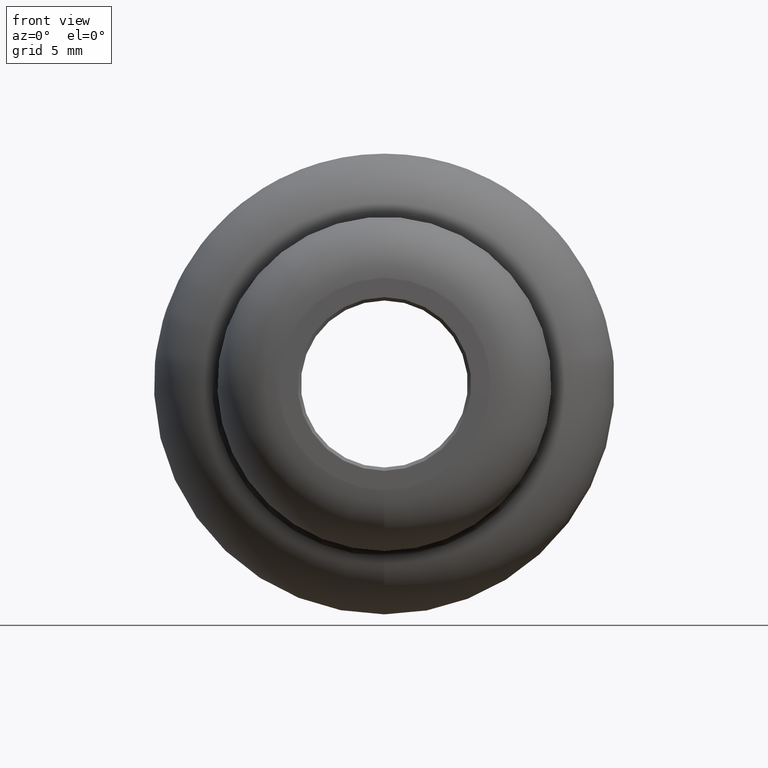
[diagram: clean part render]
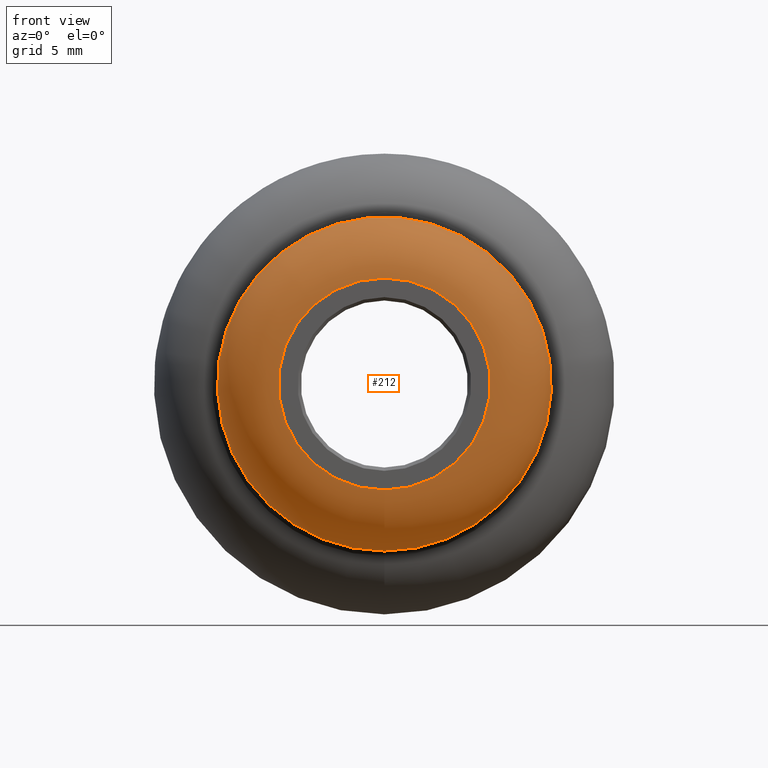
[diagram: same view with one face highlighted and labeled with its STEP entity id]
A machine part, front view. The second image highlights one B-rep face of the part: STEP entity #212.
In plain terms, the highlighted toroidal blend (fillet) surface has major radius 7.937 mm and minor (blend) radius 4.563 mm.
Its self-contained STEP definition (entity closure, byte-faithful):
#2 = CARTESIAN_POINT ( 'NONE',  ( 0.000000000000000000, -12.50000000000000000, 0.000000000000000000 ) ) ;
#18 = EDGE_CURVE ( 'NONE', #306, #306, #43, .T. ) ;
#43 = CIRCLE ( 'NONE', #230, 12.50000000000000000 ) ;
#70 = CIRCLE ( 'NONE', #141, 7.936961005306948813 ) ;
#72 = EDGE_CURVE ( 'NONE', #112, #112, #70, .T. ) ;
#97 = CARTESIAN_POINT ( 'NONE',  ( 0.000000000000000000, -7.936961005306948813, 0.000000000000000000 ) ) ;
#104 = FACE_OUTER_BOUND ( 'NONE', #287, .T. ) ;
#110 = EDGE_LOOP ( 'NONE', ( #320 ) ) ;
#112 = VERTEX_POINT ( 'NONE', #145 ) ;
#116 = CARTESIAN_POINT ( 'NONE',  ( 0.000000000000000000, -7.936961005306948813, -12.50000000000000000 ) ) ;
#127 = CARTESIAN_POINT ( 'NONE',  ( 0.000000000000000000, -7.936961005306948813, 0.000000000000000000 ) ) ;
#141 = AXIS2_PLACEMENT_3D ( 'NONE', #2, #265, #236 ) ;
#145 = CARTESIAN_POINT ( 'NONE',  ( 0.000000000000000000, -12.50000000000000000, -7.936961005306948813 ) ) ;
#212 = ADVANCED_FACE ( 'NONE', ( #104, #263 ), #239, .T. ) ;
#230 = AXIS2_PLACEMENT_3D ( 'NONE', #97, #280, #288 ) ;
#236 = DIRECTION ( 'NONE',  ( 0.000000000000000000, 0.000000000000000000, -1.000000000000000000 ) ) ;
#239 = TOROIDAL_SURFACE ( 'NONE', #289, 7.936961005306948813, 4.563038994693052075 ) ;
#263 = FACE_OUTER_BOUND ( 'NONE', #110, .T. ) ;
#265 = DIRECTION ( 'NONE',  ( -0.000000000000000000, -1.000000000000000000, -0.000000000000000000 ) ) ;
#270 = DIRECTION ( 'NONE',  ( -0.000000000000000000, -1.000000000000000000, -0.000000000000000000 ) ) ;
#271 = DIRECTION ( 'NONE',  ( 0.000000000000000000, 0.000000000000000000, -1.000000000000000000 ) ) ;
#280 = DIRECTION ( 'NONE',  ( -0.000000000000000000, -1.000000000000000000, -0.000000000000000000 ) ) ;
#287 = EDGE_LOOP ( 'NONE', ( #310 ) ) ;
#288 = DIRECTION ( 'NONE',  ( 0.000000000000000000, 0.000000000000000000, -1.000000000000000000 ) ) ;
#289 = AXIS2_PLACEMENT_3D ( 'NONE', #127, #270, #271 ) ;
#306 = VERTEX_POINT ( 'NONE', #116 ) ;
#310 = ORIENTED_EDGE ( 'NONE', *, *, #18, .T. ) ;
#320 = ORIENTED_EDGE ( 'NONE', *, *, #72, .F. ) ;